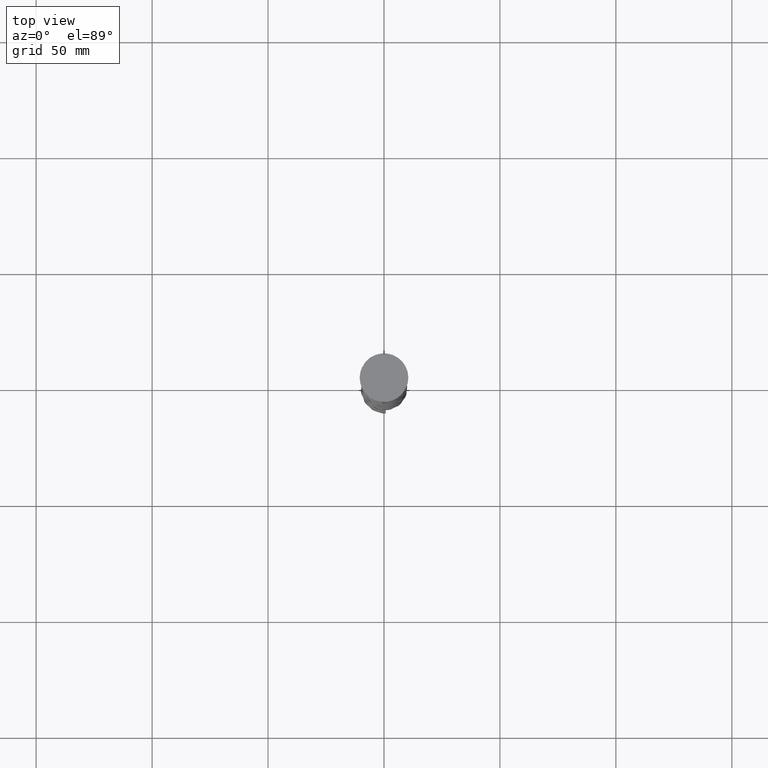
[diagram: clean part render]
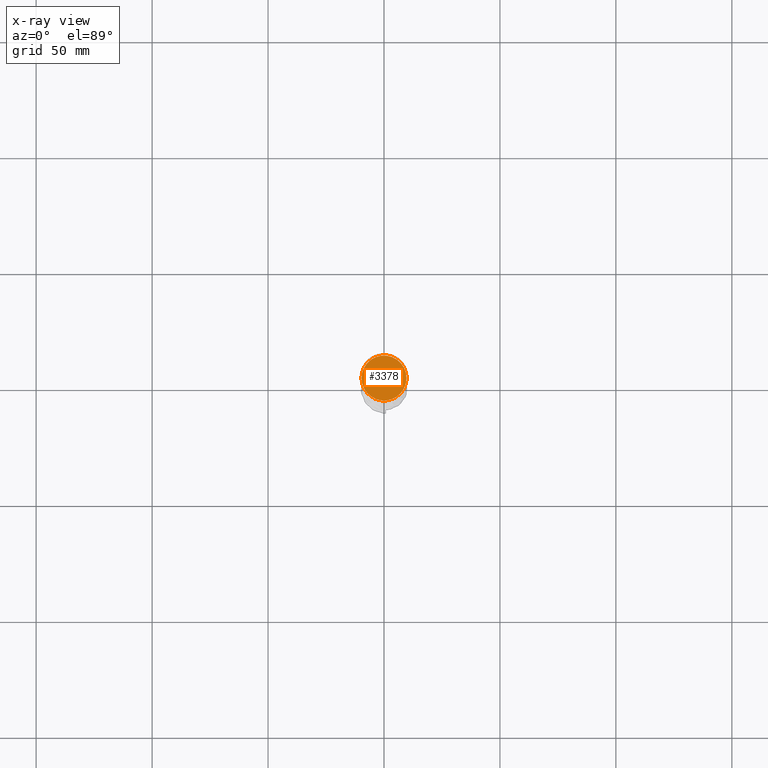
[diagram: x-ray — body ghosted, one internal face saturated and labeled with its STEP entity id]
A machine part, top view, then the same camera in x-ray: the body is ghosted and one INTERNAL B-rep face — a face not visible from any outside direction — is saturated and labeled: STEP entity #3378.
In plain terms, the highlighted planar face has unit normal (0, 0, -1).
Its self-contained STEP definition (entity closure, byte-faithful):
#104 = AXIS2_PLACEMENT_3D ( 'NONE', #1429, #3171, #776 ) ;
#408 = VERTEX_POINT ( 'NONE', #3978 ) ;
#437 = CARTESIAN_POINT ( 'NONE',  ( 0.000000000000000000, 0.000000000000000000, -12.00000000000000000 ) ) ;
#446 = AXIS2_PLACEMENT_3D ( 'NONE', #437, #1757, #4124 ) ;
#776 = DIRECTION ( 'NONE',  ( -1.000000000000000000, 0.000000000000000000, 0.000000000000000000 ) ) ;
#834 = ORIENTED_EDGE ( 'NONE', *, *, #3144, .T. ) ;
#1181 = EDGE_LOOP ( 'NONE', ( #834, #1787 ) ) ;
#1429 = CARTESIAN_POINT ( 'NONE',  ( 0.000000000000000000, 0.000000000000000000, -12.00000000000000000 ) ) ;
#1654 = PLANE ( 'NONE',  #1732 ) ;
#1732 = AXIS2_PLACEMENT_3D ( 'NONE', #3931, #2608, #2547 ) ;
#1757 = DIRECTION ( 'NONE',  ( -0.000000000000000000, -0.000000000000000000, 1.000000000000000000 ) ) ;
#1787 = ORIENTED_EDGE ( 'NONE', *, *, #4014, .T. ) ;
#2024 = VERTEX_POINT ( 'NONE', #3115 ) ;
#2547 = DIRECTION ( 'NONE',  ( -1.000000000000000000, 0.000000000000000000, -0.000000000000000000 ) ) ;
#2565 = FACE_OUTER_BOUND ( 'NONE', #1181, .T. ) ;
#2608 = DIRECTION ( 'NONE',  ( 0.000000000000000000, 0.000000000000000000, -1.000000000000000000 ) ) ;
#3115 = CARTESIAN_POINT ( 'NONE',  ( -9.700000000000002842, 0.000000000000000000, -12.00000000000000000 ) ) ;
#3144 = EDGE_CURVE ( 'NONE', #2024, #408, #3900, .T. ) ;
#3171 = DIRECTION ( 'NONE',  ( -0.000000000000000000, -0.000000000000000000, 1.000000000000000000 ) ) ;
#3378 = ADVANCED_FACE ( 'NONE', ( #2565 ), #1654, .F. ) ;
#3900 = CIRCLE ( 'NONE', #104, 9.700000000000002842 ) ;
#3931 = CARTESIAN_POINT ( 'NONE',  ( 0.000000000000000000, 0.000000000000000000, -12.00000000000000000 ) ) ;
#3978 = CARTESIAN_POINT ( 'NONE',  ( 9.700000000000002842, 1.206277097160143024E-15, -12.00000000000000000 ) ) ;
#4014 = EDGE_CURVE ( 'NONE', #408, #2024, #4054, .T. ) ;
#4054 = CIRCLE ( 'NONE', #446, 9.700000000000002842 ) ;
#4124 = DIRECTION ( 'NONE',  ( -1.000000000000000000, 0.000000000000000000, 0.000000000000000000 ) ) ;